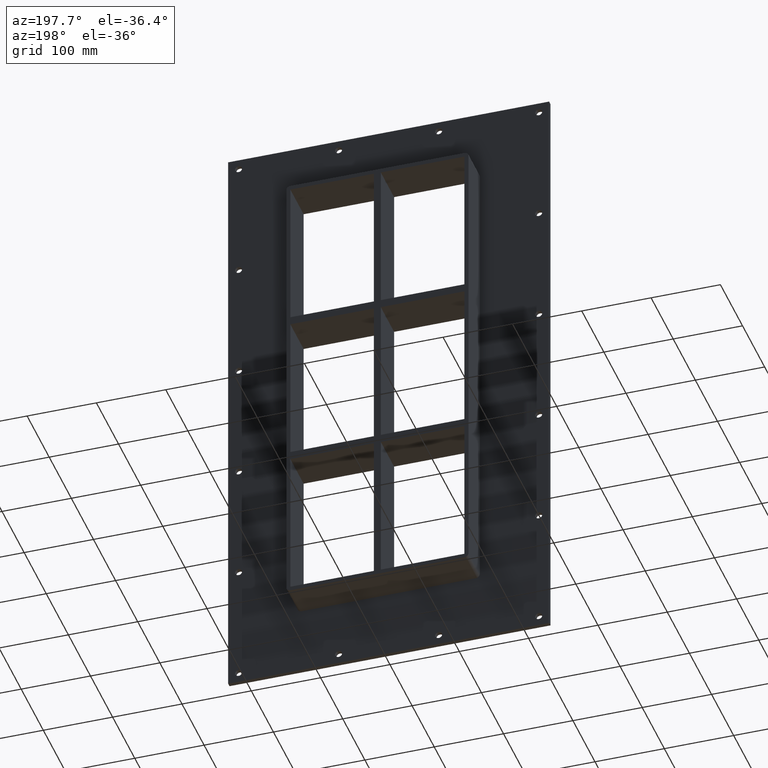
[diagram: clean part render]
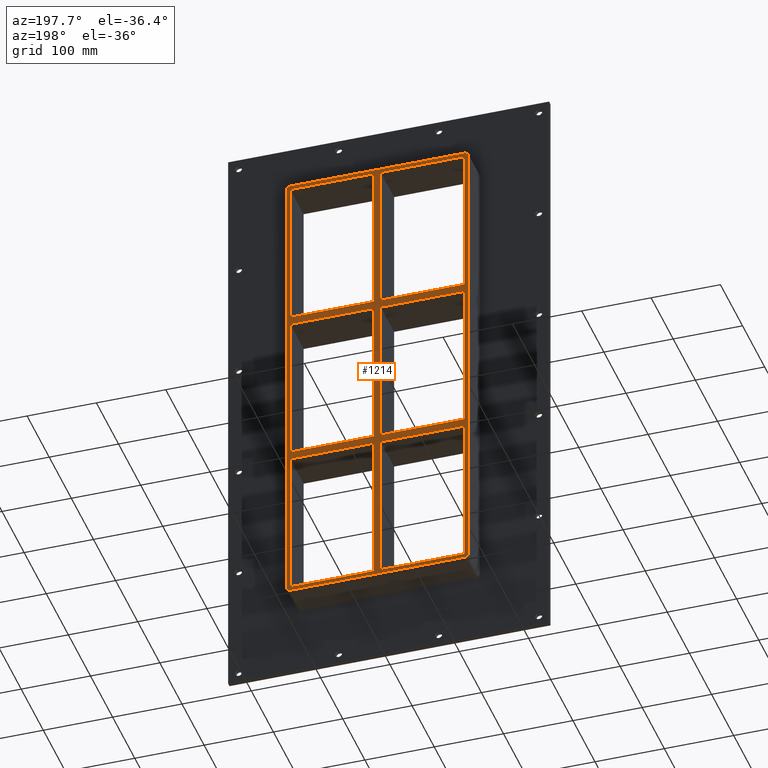
[diagram: same view with one face highlighted and labeled with its STEP entity id]
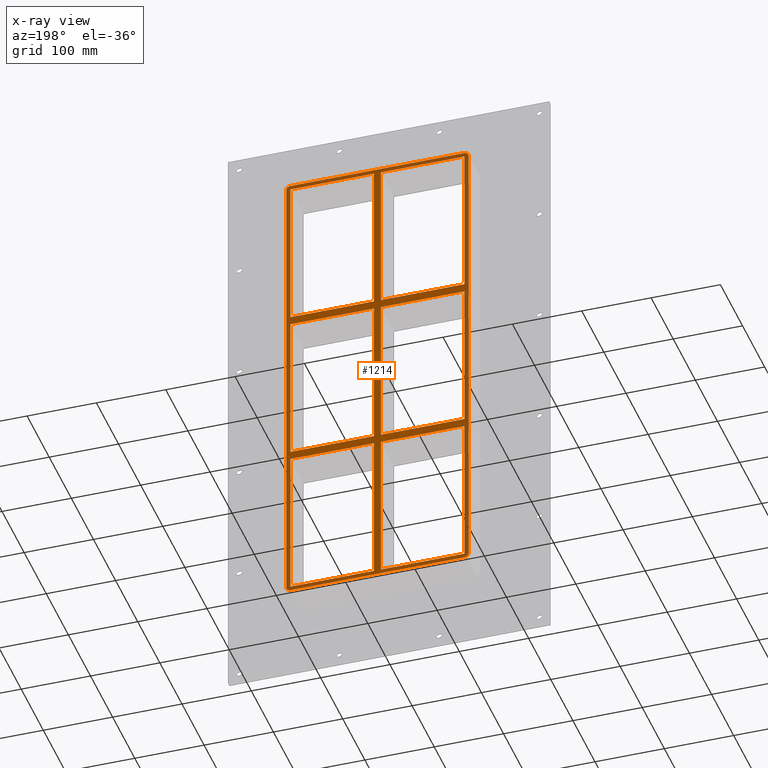
[diagram: x-ray of the same camera — body ghosted, the highlighted face saturated]
A machine part, auxiliary view. The second image highlights one B-rep face of the part: STEP entity #1214.
The next image is the same camera in x-ray: the body ghosted, the highlighted face saturated — about 0% of this face is hidden behind the body in this view.
In plain terms, the highlighted planar face has unit normal (0, 1, 0).
Its self-contained STEP definition (entity closure, byte-faithful):
#521=CARTESIAN_POINT('',(5.0,57.0,108.99999999999068));
#522=VERTEX_POINT('',#521);
#531=CARTESIAN_POINT('',(125.5000000000018,57.0,108.99999999999066));
#532=VERTEX_POINT('',#531);
#533=CARTESIAN_POINT('',(125.50000000000182,57.0,108.99999999999066));
#534=DIRECTION('',(-1.0,0.0,0.0));
#535=VECTOR('',#534,120.50000000000182);
#536=LINE('',#533,#535);
#537=EDGE_CURVE('',#532,#522,#536,.T.);
#563=CARTESIAN_POINT('',(5.0,57.0,120.99999999999994));
#564=VERTEX_POINT('',#563);
#579=CARTESIAN_POINT('',(125.49999999999991,57.0,120.99999999999994));
#580=VERTEX_POINT('',#579);
#587=CARTESIAN_POINT('',(5.000000000000014,57.0,120.99999999999994));
#588=DIRECTION('',(1.0,0.0,0.0));
#589=VECTOR('',#588,120.49999999999991);
#590=LINE('',#587,#589);
#591=EDGE_CURVE('',#564,#580,#590,.T.);
#601=CARTESIAN_POINT('',(-5.000000000001363,57.0,120.99999999999994));
#602=VERTEX_POINT('',#601);
#611=CARTESIAN_POINT('',(-125.4999999999997,57.0,120.99999999999994));
#612=VERTEX_POINT('',#611);
#613=CARTESIAN_POINT('',(-125.4999999999997,57.0,120.99999999999994));
#614=DIRECTION('',(1.0,0.0,0.0));
#615=VECTOR('',#614,120.49999999999834);
#616=LINE('',#613,#615);
#617=EDGE_CURVE('',#612,#602,#616,.T.);
#643=CARTESIAN_POINT('',(-5.000000000001361,57.0,108.99999999999068));
#644=VERTEX_POINT('',#643);
#659=CARTESIAN_POINT('',(-125.49999999999969,57.0,108.99999999999068));
#660=VERTEX_POINT('',#659);
#667=CARTESIAN_POINT('',(-5.000000000001364,57.0,108.99999999999068));
#668=DIRECTION('',(-1.0,0.0,0.0));
#669=VECTOR('',#668,120.49999999999832);
#670=LINE('',#667,#669);
#671=EDGE_CURVE('',#644,#660,#670,.T.);
#690=CARTESIAN_POINT('',(-125.4999999999997,57.0,-109.00000000000006));
#691=VERTEX_POINT('',#690);
#698=CARTESIAN_POINT('',(-125.49999999999999,57.0,108.99999999999068));
#699=DIRECTION('',(0.0,0.0,-1.0));
#700=VECTOR('',#699,217.99999999999073);
#701=LINE('',#698,#700);
#702=EDGE_CURVE('',#660,#691,#701,.T.);
#713=CARTESIAN_POINT('',(125.49999999999991,57.0,-109.00000000000006));
#714=VERTEX_POINT('',#713);
#715=CARTESIAN_POINT('',(125.5,57.0,-109.00000000000006));
#716=DIRECTION('',(0.0,0.0,1.0));
#717=VECTOR('',#716,217.99999999999073);
#718=LINE('',#715,#717);
#719=EDGE_CURVE('',#714,#532,#718,.T.);
#752=CARTESIAN_POINT('',(125.5,57.0,339.00000000000006));
#753=VERTEX_POINT('',#752);
#760=CARTESIAN_POINT('',(125.5,57.0,120.99999999999994));
#761=DIRECTION('',(0.0,0.0,1.0));
#762=VECTOR('',#761,218.00000000000011);
#763=LINE('',#760,#762);
#764=EDGE_CURVE('',#580,#753,#763,.T.);
#783=CARTESIAN_POINT('',(-5.000000000001403,57.0,339.00000000000006));
#784=VERTEX_POINT('',#783);
#791=CARTESIAN_POINT('',(-5.000000000001363,57.0,120.99999999999994));
#792=DIRECTION('',(0.0,0.0,1.0));
#793=VECTOR('',#792,218.00000000000011);
#794=LINE('',#791,#793);
#795=EDGE_CURVE('',#602,#784,#794,.T.);
#806=CARTESIAN_POINT('',(-5.000000000001315,57.0,-109.00000000000006));
#807=VERTEX_POINT('',#806);
#808=CARTESIAN_POINT('',(-5.000000000001321,57.0,-109.00000000000006));
#809=DIRECTION('',(0.0,0.0,1.0));
#810=VECTOR('',#809,217.99999999999073);
#811=LINE('',#808,#810);
#812=EDGE_CURVE('',#807,#644,#811,.T.);
#837=CARTESIAN_POINT('',(5.0,57.0,339.00000000000006));
#838=VERTEX_POINT('',#837);
#839=CARTESIAN_POINT('',(5.0,57.0,339.00000000000006));
#840=DIRECTION('',(0.0,0.0,-1.0));
#841=VECTOR('',#840,218.00000000000011);
#842=LINE('',#839,#841);
#843=EDGE_CURVE('',#838,#564,#842,.T.);
#867=CARTESIAN_POINT('',(5.0,57.0,-121.00000000000934));
#868=VERTEX_POINT('',#867);
#877=CARTESIAN_POINT('',(125.5000000000018,57.0,-121.00000000000934));
#878=VERTEX_POINT('',#877);
#879=CARTESIAN_POINT('',(125.50000000000182,57.0,-121.00000000000934));
#880=DIRECTION('',(-1.0,0.0,0.0));
#881=VECTOR('',#880,120.50000000000182);
#882=LINE('',#879,#881);
#883=EDGE_CURVE('',#878,#868,#882,.T.);
#909=CARTESIAN_POINT('',(-5.000000000001315,57.0,-121.00000000000932));
#910=VERTEX_POINT('',#909);
#925=CARTESIAN_POINT('',(-125.49999999999969,57.0,-121.00000000000932));
#926=VERTEX_POINT('',#925);
#933=CARTESIAN_POINT('',(-5.000000000001307,57.0,-121.00000000000932));
#934=DIRECTION('',(-1.0,0.0,0.0));
#935=VECTOR('',#934,120.49999999999838);
#936=LINE('',#933,#935);
#937=EDGE_CURVE('',#910,#926,#936,.T.);
#949=CARTESIAN_POINT('',(5.0,57.0,-109.00000000000006));
#950=VERTEX_POINT('',#949);
#964=CARTESIAN_POINT('',(5.000000000000014,57.0,-109.00000000000006));
#965=DIRECTION('',(1.0,0.0,0.0));
#966=VECTOR('',#965,120.49999999999991);
#967=LINE('',#964,#966);
#968=EDGE_CURVE('',#950,#714,#967,.T.);
#979=CARTESIAN_POINT('',(-125.4999999999997,57.0,-109.00000000000006));
#980=DIRECTION('',(1.0,0.0,0.0));
#981=VECTOR('',#980,120.49999999999839);
#982=LINE('',#979,#981);
#983=EDGE_CURVE('',#691,#807,#982,.T.);
#1001=CARTESIAN_POINT('',(-125.5,57.0,339.00000000000006));
#1002=VERTEX_POINT('',#1001);
#1003=CARTESIAN_POINT('',(-125.49999999999999,57.0,339.00000000000006));
#1004=DIRECTION('',(0.0,0.0,-1.0));
#1005=VECTOR('',#1004,218.00000000000011);
#1006=LINE('',#1003,#1005);
#1007=EDGE_CURVE('',#1002,#612,#1006,.T.);
#1032=CARTESIAN_POINT('',(125.5,57.0,-339.00000000000006));
#1033=VERTEX_POINT('',#1032);
#1034=CARTESIAN_POINT('',(125.5,57.0,-339.00000000000011));
#1035=DIRECTION('',(0.0,0.0,1.0));
#1036=VECTOR('',#1035,217.99999999999079);
#1037=LINE('',#1034,#1036);
#1038=EDGE_CURVE('',#1033,#878,#1037,.T.);
#1057=CARTESIAN_POINT('',(0.0,57.0,-7.157618E-014));
#1058=DIRECTION('',(0.0,1.0,0.0));
#1059=DIRECTION('',(0.0,0.0,1.0));
#1060=AXIS2_PLACEMENT_3D('',#1057,#1058,#1059);
#1061=PLANE('',#1060);
#1062=CARTESIAN_POINT('',(125.5,57.0,-345.00000000000011));
#1063=VERTEX_POINT('',#1062);
#1064=CARTESIAN_POINT('',(131.5,57.0,-339.00000000000006));
#1065=VERTEX_POINT('',#1064);
#1066=CARTESIAN_POINT('',(125.5,57.0,-339.00000000000006));
#1067=DIRECTION('',(0.0,-1.0,0.0));
#1068=DIRECTION('',(0.707106781186543,0.0,-0.707106781186552));
#1069=AXIS2_PLACEMENT_3D('',#1066,#1067,#1068);
#1070=CIRCLE('',#1069,6.0);
#1071=EDGE_CURVE('',#1063,#1065,#1070,.T.);
#1072=ORIENTED_EDGE('',*,*,#1071,.F.);
#1073=CARTESIAN_POINT('',(-125.50000000000003,57.0,-345.00000000000011));
#1074=VERTEX_POINT('',#1073);
#1075=CARTESIAN_POINT('',(125.5,57.0,-345.00000000000011));
#1076=DIRECTION('',(-1.0,0.0,0.0));
#1077=VECTOR('',#1076,251.0);
#1078=LINE('',#1075,#1077);
#1079=EDGE_CURVE('',#1063,#1074,#1078,.T.);
#1080=ORIENTED_EDGE('',*,*,#1079,.T.);
#1081=CARTESIAN_POINT('',(-131.5,57.0,-339.00000000000023));
#1082=VERTEX_POINT('',#1081);
#1083=CARTESIAN_POINT('',(-125.5,57.0,-339.00000000000023));
#1084=DIRECTION('',(0.0,-1.0,0.0));
#1085=DIRECTION('',(-0.707106781186552,0.0,-0.707106781186543));
#1086=AXIS2_PLACEMENT_3D('',#1083,#1084,#1085);
#1087=CIRCLE('',#1086,6.000000000000001);
#1088=EDGE_CURVE('',#1082,#1074,#1087,.T.);
#1089=ORIENTED_EDGE('',*,*,#1088,.F.);
#1090=CARTESIAN_POINT('',(-131.5,57.0,338.99999999999989));
#1091=VERTEX_POINT('',#1090);
#1092=CARTESIAN_POINT('',(-131.5,57.0,-339.00000000000017));
#1093=DIRECTION('',(0.0,0.0,1.0));
#1094=VECTOR('',#1093,678.0);
#1095=LINE('',#1092,#1094);
#1096=EDGE_CURVE('',#1082,#1091,#1095,.T.);
#1097=ORIENTED_EDGE('',*,*,#1096,.T.);
#1098=CARTESIAN_POINT('',(-125.5,57.0,345.0));
#1099=VERTEX_POINT('',#1098);
#1100=CARTESIAN_POINT('',(-125.5,57.0,338.99999999999989));
#1101=DIRECTION('',(0.0,-1.0,0.0));
#1102=DIRECTION('',(-0.707106781186543,0.0,0.707106781186552));
#1103=AXIS2_PLACEMENT_3D('',#1100,#1101,#1102);
#1104=CIRCLE('',#1103,6.0);
#1105=EDGE_CURVE('',#1099,#1091,#1104,.T.);
#1106=ORIENTED_EDGE('',*,*,#1105,.F.);
#1107=CARTESIAN_POINT('',(125.50000000000003,57.0,345.0));
#1108=VERTEX_POINT('',#1107);
#1109=CARTESIAN_POINT('',(-125.5,57.0,345.0));
#1110=DIRECTION('',(1.0,0.0,0.0));
#1111=VECTOR('',#1110,251.0);
#1112=LINE('',#1109,#1111);
#1113=EDGE_CURVE('',#1099,#1108,#1112,.T.);
#1114=ORIENTED_EDGE('',*,*,#1113,.T.);
#1115=CARTESIAN_POINT('',(131.5,57.0,339.0));
#1116=VERTEX_POINT('',#1115);
#1117=CARTESIAN_POINT('',(125.5,57.0,339.0));
#1118=DIRECTION('',(0.0,-1.0,0.0));
#1119=DIRECTION('',(0.707106781186543,0.0,0.707106781186552));
#1120=AXIS2_PLACEMENT_3D('',#1117,#1118,#1119);
#1121=CIRCLE('',#1120,6.0);
#1122=EDGE_CURVE('',#1116,#1108,#1121,.T.);
#1123=ORIENTED_EDGE('',*,*,#1122,.F.);
#1124=CARTESIAN_POINT('',(131.5,57.0,339.0));
#1125=DIRECTION('',(0.0,0.0,-1.0));
#1126=VECTOR('',#1125,678.0);
#1127=LINE('',#1124,#1126);
#1128=EDGE_CURVE('',#1116,#1065,#1127,.T.);
#1129=ORIENTED_EDGE('',*,*,#1128,.T.);
#1130=EDGE_LOOP('',(#1072,#1080,#1089,#1097,#1106,#1114,#1123,#1129));
#1131=FACE_OUTER_BOUND('',#1130,.T.);
#1132=ORIENTED_EDGE('',*,*,#702,.T.);
#1133=ORIENTED_EDGE('',*,*,#983,.T.);
#1134=ORIENTED_EDGE('',*,*,#812,.T.);
#1135=ORIENTED_EDGE('',*,*,#671,.T.);
#1136=EDGE_LOOP('',(#1132,#1133,#1134,#1135));
#1137=FACE_BOUND('',#1136,.T.);
#1138=ORIENTED_EDGE('',*,*,#764,.T.);
#1139=CARTESIAN_POINT('',(125.5,57.0,339.00000000000006));
#1140=DIRECTION('',(-1.0,0.0,0.0));
#1141=VECTOR('',#1140,120.5);
#1142=LINE('',#1139,#1141);
#1143=EDGE_CURVE('',#753,#838,#1142,.T.);
#1144=ORIENTED_EDGE('',*,*,#1143,.T.);
#1145=ORIENTED_EDGE('',*,*,#843,.T.);
#1146=ORIENTED_EDGE('',*,*,#591,.T.);
#1147=EDGE_LOOP('',(#1138,#1144,#1145,#1146));
#1148=FACE_BOUND('',#1147,.T.);
#1149=ORIENTED_EDGE('',*,*,#537,.T.);
#1150=CARTESIAN_POINT('',(5.0,57.0,108.99999999999068));
#1151=DIRECTION('',(0.0,0.0,-1.0));
#1152=VECTOR('',#1151,217.99999999999073);
#1153=LINE('',#1150,#1152);
#1154=EDGE_CURVE('',#522,#950,#1153,.T.);
#1155=ORIENTED_EDGE('',*,*,#1154,.T.);
#1156=ORIENTED_EDGE('',*,*,#968,.T.);
#1157=ORIENTED_EDGE('',*,*,#719,.T.);
#1158=EDGE_LOOP('',(#1149,#1155,#1156,#1157));
#1159=FACE_BOUND('',#1158,.T.);
#1160=ORIENTED_EDGE('',*,*,#617,.T.);
#1161=ORIENTED_EDGE('',*,*,#795,.T.);
#1162=CARTESIAN_POINT('',(-5.0000000000014,57.0,339.00000000000006));
#1163=DIRECTION('',(-1.0,0.0,0.0));
#1164=VECTOR('',#1163,120.49999999999861);
#1165=LINE('',#1162,#1164);
#1166=EDGE_CURVE('',#784,#1002,#1165,.T.);
#1167=ORIENTED_EDGE('',*,*,#1166,.T.);
#1168=ORIENTED_EDGE('',*,*,#1007,.T.);
#1169=EDGE_LOOP('',(#1160,#1161,#1167,#1168));
#1170=FACE_BOUND('',#1169,.T.);
#1171=CARTESIAN_POINT('',(-125.5,57.0,-339.00000000000006));
#1172=VERTEX_POINT('',#1171);
#1173=CARTESIAN_POINT('',(-125.49999999999999,57.0,-121.00000000000932));
#1174=DIRECTION('',(0.0,0.0,-1.0));
#1175=VECTOR('',#1174,217.99999999999073);
#1176=LINE('',#1173,#1175);
#1177=EDGE_CURVE('',#926,#1172,#1176,.T.);
#1178=ORIENTED_EDGE('',*,*,#1177,.T.);
#1179=CARTESIAN_POINT('',(-5.000000000001279,57.0,-339.00000000000006));
#1180=VERTEX_POINT('',#1179);
#1181=CARTESIAN_POINT('',(-125.50000000000003,57.0,-339.00000000000006));
#1182=DIRECTION('',(1.0,0.0,0.0));
#1183=VECTOR('',#1182,120.49999999999875);
#1184=LINE('',#1181,#1183);
#1185=EDGE_CURVE('',#1172,#1180,#1184,.T.);
#1186=ORIENTED_EDGE('',*,*,#1185,.T.);
#1187=CARTESIAN_POINT('',(-5.000000000001279,57.0,-339.00000000000006));
#1188=DIRECTION('',(0.0,0.0,1.0));
#1189=VECTOR('',#1188,217.99999999999073);
#1190=LINE('',#1187,#1189);
#1191=EDGE_CURVE('',#1180,#910,#1190,.T.);
#1192=ORIENTED_EDGE('',*,*,#1191,.T.);
#1193=ORIENTED_EDGE('',*,*,#937,.T.);
#1194=EDGE_LOOP('',(#1178,#1186,#1192,#1193));
#1195=FACE_BOUND('',#1194,.T.);
#1196=ORIENTED_EDGE('',*,*,#883,.T.);
#1197=CARTESIAN_POINT('',(5.0,57.0,-338.99999999998431));
#1198=VERTEX_POINT('',#1197);
#1199=CARTESIAN_POINT('',(5.0,57.0,-121.00000000000932));
#1200=DIRECTION('',(0.0,0.0,-1.0));
#1201=VECTOR('',#1200,217.99999999997493);
#1202=LINE('',#1199,#1201);
#1203=EDGE_CURVE('',#868,#1198,#1202,.T.);
#1204=ORIENTED_EDGE('',*,*,#1203,.T.);
#1205=CARTESIAN_POINT('',(5.0,57.0,-339.00000000000006));
#1206=DIRECTION('',(1.0,0.0,0.0));
#1207=VECTOR('',#1206,120.5);
#1208=LINE('',#1205,#1207);
#1209=EDGE_CURVE('',#1198,#1033,#1208,.T.);
#1210=ORIENTED_EDGE('',*,*,#1209,.T.);
#1211=ORIENTED_EDGE('',*,*,#1038,.T.);
#1212=EDGE_LOOP('',(#1196,#1204,#1210,#1211));
#1213=FACE_BOUND('',#1212,.T.);
#1214=ADVANCED_FACE('',(#1131,#1137,#1148,#1159,#1170,#1195,#1213),#1061,.T.);